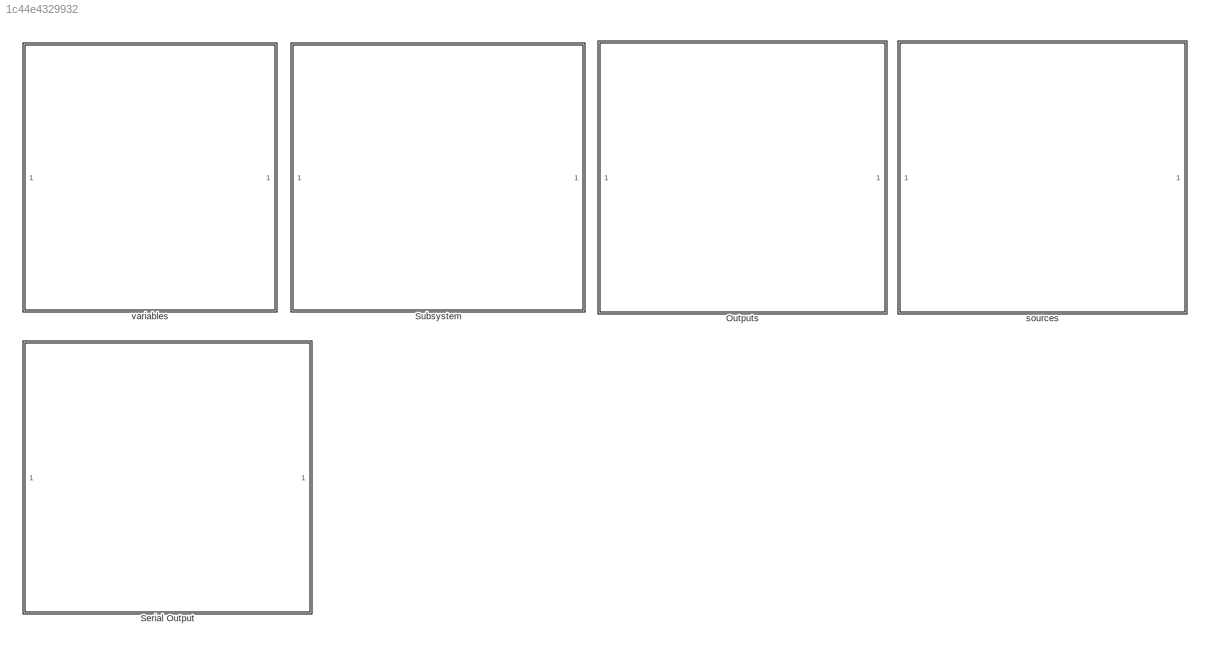
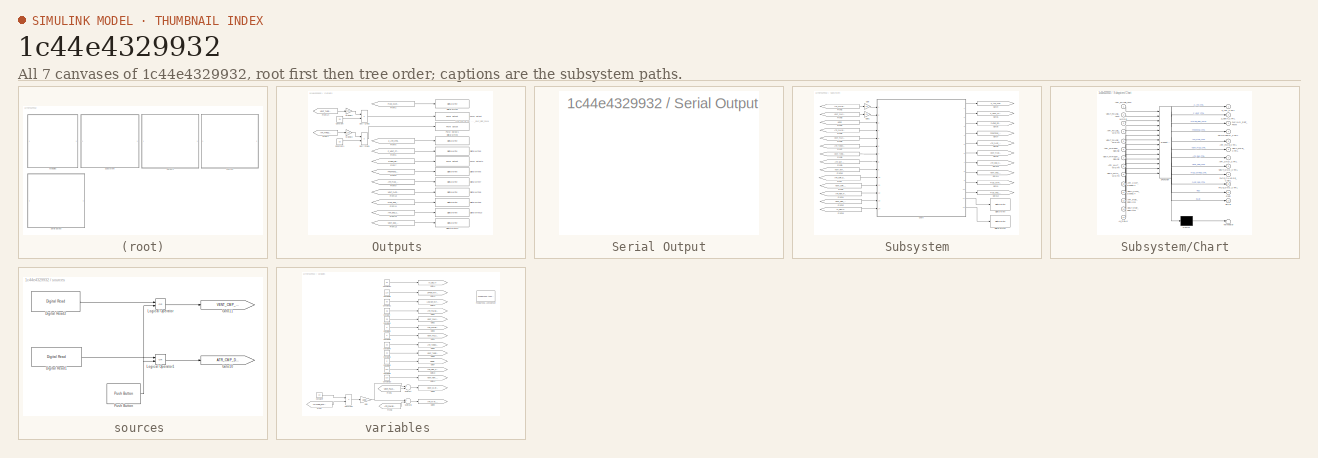
[diagram: thumbnail index - all 7 canvases of the model, root first then tree order]
MODEL slx_1c44e4329932
KIND model
CONFIG AbsTol = auto
CONFIG EnableMultiTasking = on
CONFIG FixedStep = 1E-3
CONFIG MaxStep = auto
CONFIG MinStep = auto
CONFIG RelTol = 1e-3
CONFIG SampleTimeConstraint = Unconstrained
CONFIG Solver = FixedStepAuto
CONFIG SolverName = FixedStepAuto
CONFIG StartTime = 0.0
CONFIG StopTime = 10.0
BLOCK [SubSystem] Outputs 
  Ports = []
  RequestExecContextInheritance = off
  Variant = off
BLOCK [Constant] Outputs /Constant
  Value = 3.3
BLOCK [Constant] Outputs /Constant1
  Value = 3.3
BLOCK [Reference] Outputs /Digital Write10  REF=frdmk64flib/Digital Write
  Ports = [1]
  SourceBlock = frdmk64flib/Digital Write
  SourceProductBaseCode = EC_FRDM_K64F
  SourceProductName = Simulink Coder Support Package for NXP FRDM-K64F Board
  SourceType = freedomk64f.DigitalWrite
BLOCK [Reference] Outputs /Digital Write11  REF=frdmk64flib/Digital Write
  Ports = [1]
  SourceBlock = frdmk64flib/Digital Write
  SourceProductBaseCode = EC_FRDM_K64F
  SourceProductName = Simulink Coder Support Package for NXP FRDM-K64F Board
  SourceType = freedomk64f.DigitalWrite
BLOCK [Reference] Outputs /Digital Write2  REF=frdmk64flib/Digital Write
  Ports = [1]
  SourceBlock = frdmk64flib/Digital Write
  SourceProductBaseCode = EC_FRDM_K64F
  SourceProductName = Simulink Coder Support Package for NXP FRDM-K64F Board
  SourceType = freedomk64f.DigitalWrite
BLOCK [Reference] Outputs /Digital Write3  REF=frdmk64flib/Digital Write
  Ports = [1]
  SourceBlock = frdmk64flib/Digital Write
  SourceProductBaseCode = EC_FRDM_K64F
  SourceProductName = Simulink Coder Support Package for NXP FRDM-K64F Board
  SourceType = freedomk64f.DigitalWrite
BLOCK [Reference] Outputs /Digital Write5  REF=frdmk64flib/Digital Write
  Ports = [1]
  SourceBlock = frdmk64flib/Digital Write
  SourceProductBaseCode = EC_FRDM_K64F
  SourceProductName = Simulink Coder Support Package for NXP FRDM-K64F Board
  SourceType = freedomk64f.DigitalWrite
BLOCK [Reference] Outputs /Digital Write6  REF=frdmk64flib/Digital Write
  Ports = [1]
  SourceBlock = frdmk64flib/Digital Write
  SourceProductBaseCode = EC_FRDM_K64F
  SourceProductName = Simulink Coder Support Package for NXP FRDM-K64F Board
  SourceType = freedomk64f.DigitalWrite
BLOCK [Reference] Outputs /Digital Write7  REF=frdmk64flib/Digital Write
  Ports = [1]
  SourceBlock = frdmk64flib/Digital Write
  SourceProductBaseCode = EC_FRDM_K64F
  SourceProductName = Simulink Coder Support Package for NXP FRDM-K64F Board
  SourceType = freedomk64f.DigitalWrite
BLOCK [Reference] Outputs /Digital Write8  REF=frdmk64flib/Digital Write
  Ports = [1]
  SourceBlock = frdmk64flib/Digital Write
  SourceProductBaseCode = EC_FRDM_K64F
  SourceProductName = Simulink Coder Support Package for NXP FRDM-K64F Board
  SourceType = freedomk64f.DigitalWrite
BLOCK [Reference] Outputs /Digital Write9  REF=frdmk64flib/Digital Write
  Ports = [1]
  SourceBlock = frdmk64flib/Digital Write
  SourceProductBaseCode = EC_FRDM_K64F
  SourceProductName = Simulink Coder Support Package for NXP FRDM-K64F Board
  SourceType = freedomk64f.DigitalWrite
BLOCK [Product] Outputs /Duty Cycle1
  InputSameDT = off
  Inputs = */
  OutDataTypeStr = Inherit: Inherit via internal rule
  Ports = [2, 1]
  RndMeth = Floor
  SaturateOnIntegerOverflow = off
BLOCK [Product] Outputs /Duty Cycle2
  InputSameDT = off
  Inputs = */
  OutDataTypeStr = Inherit: Inherit via internal rule
  Ports = [2, 1]
  RndMeth = Floor
  SaturateOnIntegerOverflow = off
BLOCK [From] Outputs /From1
  GotoTag = ATR_THRESH_SENSE
  TagVisibility = global
BLOCK [From] Outputs /From10
  GotoTag = VENT_PACE_CTRL
  TagVisibility = global
BLOCK [From] Outputs /From11
  GotoTag = PACE_GND_CTRL
  TagVisibility = global
BLOCK [From] Outputs /From12
  GotoTag = ATR_GND_CTRL
  TagVisibility = global
BLOCK [From] Outputs /From13
  GotoTag = VENT_GND_CTRL
  TagVisibility = global
BLOCK [From] Outputs /From14
  GotoTag = VENT_THRESH_SENSE
  TagVisibility = global
BLOCK [From] Outputs /From2
  GotoTag = PACE_CHARGE_CTRL
  TagVisibility = global
BLOCK [From] Outputs /From5
  GotoTag = Z_ATR_CTRL
  TagVisibility = global
BLOCK [From] Outputs /From6
  GotoTag = Z_VENT_CTRL
  TagVisibility = global
BLOCK [From] Outputs /From7
  GotoTag = PACING_REF_PWM
  TagVisibility = global
BLOCK [From] Outputs /From8
  GotoTag = FRONTEND_CTRL
  TagVisibility = global
BLOCK [From] Outputs /From9
  GotoTag = ATR_PACE_CTRL
  TagVisibility = global
BLOCK [Gain] Outputs /Multiply1
  Gain = 100
  OutDataTypeStr = Inherit: Inherit via internal rule
  ParamDataTypeStr = Inherit: Inherit via internal rule
  SaturateOnIntegerOverflow = off
BLOCK [Gain] Outputs /Multiply2
  Gain = 100
  OutDataTypeStr = Inherit: Inherit via internal rule
  ParamDataTypeStr = Inherit: Inherit via internal rule
  SaturateOnIntegerOverflow = off
BLOCK [Reference] Outputs /PWM Output  REF=frdmk64flib/PWM Output
  Ports = [1]
  SourceBlock = frdmk64flib/PWM Output
  SourceProductBaseCode = EC_FRDM_K64F
  SourceProductName = Simulink Coder Support Package for NXP FRDM-K64F Board
  SourceType = freedomk64f.PWMOutput
BLOCK [Reference] Outputs /PWM Output1  REF=frdmk64flib/PWM Output
  Ports = [1]
  SourceBlock = frdmk64flib/PWM Output
  SourceProductBaseCode = EC_FRDM_K64F
  SourceProductName = Simulink Coder Support Package for NXP FRDM-K64F Board
  SourceType = freedomk64f.PWMOutput
BLOCK [Reference] Outputs /PWM Output2  REF=frdmk64flib/PWM Output
  Ports = [1]
  SourceBlock = frdmk64flib/PWM Output
  SourceProductBaseCode = EC_FRDM_K64F
  SourceProductName = Simulink Coder Support Package for NXP FRDM-K64F Board
  SourceType = freedomk64f.PWMOutput
BLOCK [SubSystem] Serial Output
  Ports = []
  RequestExecContextInheritance = off
  Variant = off
BLOCK [SubSystem] Subsystem
  Ports = []
  RequestExecContextInheritance = off
  Variant = off
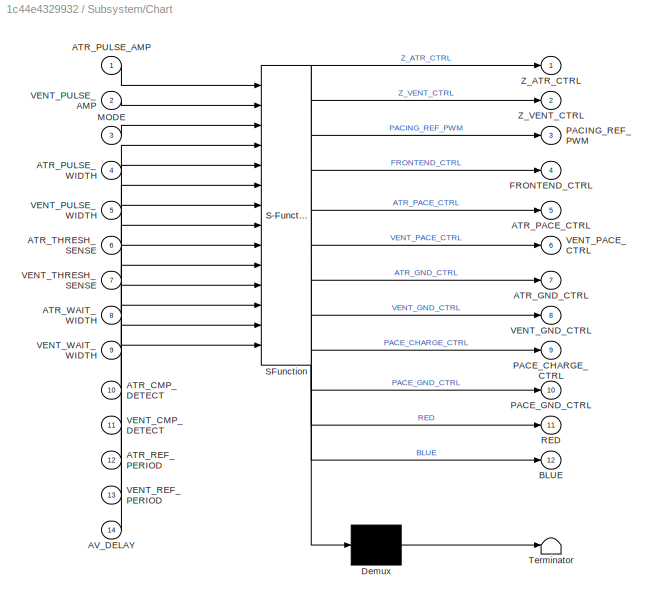
BLOCK [SubSystem] Subsystem/Chart
  ErrorFcn = Stateflow.Translate.translate
  PermitHierarchicalResolution = ExplicitOnly
  Ports = [14, 12]
  RequestExecContextInheritance = off
  SFBlockType = Chart
  TreatAsAtomicUnit = on
  Variant = off
BLOCK [Demux] Subsystem/Chart/ Demux 
  Outputs = 1
  Ports = [1, 1]
BLOCK [S-Function] Subsystem/Chart/ SFunction 
  EnableBusSupport = on
  FunctionName = sf_sfun
  PortCounts = [14 13]
  Ports = [14, 13]
  SFcnIsStateOwnerBlock = off
  SFunctionDeploymentMode = off
  Tag = Stateflow S-Function Assignment1 3
BLOCK [Terminator] Subsystem/Chart/ Terminator 
BLOCK [Inport] Subsystem/Chart/ATR_CMP_DETECT
  IconDisplay = Port number
  Port = 10
BLOCK [Outport] Subsystem/Chart/ATR_GND_CTRL
  IconDisplay = Port number
  Port = 7
BLOCK [Outport] Subsystem/Chart/ATR_PACE_CTRL
  IconDisplay = Port number
  Port = 5
BLOCK [Inport] Subsystem/Chart/ATR_PULSE_AMP
  IconDisplay = Port number
BLOCK [Inport] Subsystem/Chart/ATR_PULSE_WIDTH
  IconDisplay = Port number
  Port = 4
BLOCK [Inport] Subsystem/Chart/ATR_REF_PERIOD
  IconDisplay = Port number
  Port = 12
BLOCK [Inport] Subsystem/Chart/ATR_THRESH_SENSE
  IconDisplay = Port number
  Port = 6
BLOCK [Inport] Subsystem/Chart/ATR_WAIT_WIDTH
  IconDisplay = Port number
  Port = 8
BLOCK [Inport] Subsystem/Chart/AV_DELAY
  IconDisplay = Port number
  Port = 14
BLOCK [Outport] Subsystem/Chart/BLUE
  IconDisplay = Port number
  Port = 12
BLOCK [Outport] Subsystem/Chart/FRONTEND_CTRL
  IconDisplay = Port number
  Port = 4
BLOCK [Inport] Subsystem/Chart/MODE
  IconDisplay = Port number
  Port = 3
BLOCK [Outport] Subsystem/Chart/PACE_CHARGE_CTRL
  IconDisplay = Port number
  Port = 9
BLOCK [Outport] Subsystem/Chart/PACE_GND_CTRL
  IconDisplay = Port number
  Port = 10
BLOCK [Outport] Subsystem/Chart/PACING_REF_PWM
  IconDisplay = Port number
  Port = 3
BLOCK [Outport] Subsystem/Chart/RED
  IconDisplay = Port number
  Port = 11
BLOCK [Inport] Subsystem/Chart/VENT_CMP_DETECT
  IconDisplay = Port number
  Port = 11
BLOCK [Outport] Subsystem/Chart/VENT_GND_CTRL
  IconDisplay = Port number
  Port = 8
BLOCK [Outport] Subsystem/Chart/VENT_PACE_CTRL
  IconDisplay = Port number
  Port = 6
BLOCK [Inport] Subsystem/Chart/VENT_PULSE_AMP
  IconDisplay = Port number
  Port = 2
BLOCK [Inport] Subsystem/Chart/VENT_PULSE_WIDTH
  IconDisplay = Port number
  Port = 5
BLOCK [Inport] Subsystem/Chart/VENT_REF_PERIOD
  IconDisplay = Port number
  Port = 13
BLOCK [Inport] Subsystem/Chart/VENT_THRESH_SENSE
  IconDisplay = Port number
  Port = 7
BLOCK [Inport] Subsystem/Chart/VENT_WAIT_WIDTH
  IconDisplay = Port number
  Port = 9
BLOCK [Outport] Subsystem/Chart/Z_ATR_CTRL
  IconDisplay = Port number
BLOCK [Outport] Subsystem/Chart/Z_VENT_CTRL
  IconDisplay = Port number
  Port = 2
BLOCK [Reference] Subsystem/Digital Write  REF=frdmk64flib/Digital Write
  Ports = [1]
  SourceBlock = frdmk64flib/Digital Write
  SourceProductBaseCode = EC_FRDM_K64F
  SourceProductName = Simulink Coder Support Package for NXP FRDM-K64F Board
  SourceType = freedomk64f.DigitalWrite
BLOCK [Reference] Subsystem/Digital Write1  REF=frdmk64flib/Digital Write
  Ports = [1]
  SourceBlock = frdmk64flib/Digital Write
  SourceProductBaseCode = EC_FRDM_K64F
  SourceProductName = Simulink Coder Support Package for NXP FRDM-K64F Board
  SourceType = freedomk64f.DigitalWrite
BLOCK [From] Subsystem/From
  GotoTag = ATR_CMP_DETECT
  TagVisibility = global
BLOCK [From] Subsystem/From1
  GotoTag = VENT_CMP_DETECT
  TagVisibility = global
BLOCK [From] Subsystem/From10
  GotoTag = VENT_WAIT_WIDTH
  TagVisibility = global
BLOCK [From] Subsystem/From11
  GotoTag = ATR_REF_PERIOD
  TagVisibility = global
BLOCK [From] Subsystem/From12
  GotoTag = VENT_REF_PERIOD
  TagVisibility = global
BLOCK [From] Subsystem/From13
  GotoTag = AV_DELAY
  TagVisibility = global
BLOCK [From] Subsystem/From2
  GotoTag = ATR_PULSE_AMP
  TagVisibility = global
BLOCK [From] Subsystem/From3
  GotoTag = VENT_PULSE_AMP
  TagVisibility = global
BLOCK [From] Subsystem/From4
  GotoTag = MODE
  TagVisibility = global
BLOCK [From] Subsystem/From5
  GotoTag = ATR_PULSE_WIDTH
  TagVisibility = global
BLOCK [From] Subsystem/From6
  GotoTag = VENT_PULSE_WIDTH
  TagVisibility = global
BLOCK [From] Subsystem/From7
  GotoTag = ATR_THRESH_SENSE
  TagVisibility = global
BLOCK [From] Subsystem/From8
  GotoTag = VENT_THRESH_SENSE
  TagVisibility = global
BLOCK [From] Subsystem/From9
  GotoTag = ATR_WAIT_WIDTH
  TagVisibility = global
BLOCK [Gain] Subsystem/Gain
  Gain = 20
  OutDataTypeStr = Inherit: Inherit via internal rule
  ParamDataTypeStr = Inherit: Inherit via internal rule
  SaturateOnIntegerOverflow = off
BLOCK [Gain] Subsystem/Gain1
  Gain = 20
  OutDataTypeStr = Inherit: Inherit via internal rule
  ParamDataTypeStr = Inherit: Inherit via internal rule
  SaturateOnIntegerOverflow = off
BLOCK [Goto] Subsystem/Goto1
  GotoTag = PACE_CHARGE_CTRL
  TagVisibility = global
BLOCK [Goto] Subsystem/Goto10
  GotoTag = ATR_GND_CTRL
  TagVisibility = global
BLOCK [Goto] Subsystem/Goto11
  GotoTag = VENT_GND_CTRL
  TagVisibility = global
BLOCK [Goto] Subsystem/Goto12
  GotoTag = PACE_GND_CTRL
  TagVisibility = global
BLOCK [Goto] Subsystem/Goto4
  GotoTag = Z_ATR_CTRL
  TagVisibility = global
BLOCK [Goto] Subsystem/Goto5
  GotoTag = Z_VENT_CTRL
  TagVisibility = global
BLOCK [Goto] Subsystem/Goto6
  GotoTag = PACING_REF_PWM
  TagVisibility = global
BLOCK [Goto] Subsystem/Goto7
  GotoTag = FRONTEND_CTRL
  TagVisibility = global
BLOCK [Goto] Subsystem/Goto8
  GotoTag = ATR_PACE_CTRL
  TagVisibility = global
BLOCK [Goto] Subsystem/Goto9
  GotoTag = VENT_PACE_CTRL
  TagVisibility = global
BLOCK [SubSystem] sources 
  Ports = []
  RequestExecContextInheritance = off
  Variant = off
BLOCK [Reference] sources /Digital Read1  REF=frdmk64flib/Digital Read
  Ports = [0, 1]
  SourceBlock = frdmk64flib/Digital Read
  SourceProductBaseCode = EC_FRDM_K64F
  SourceProductName = Simulink Coder Support Package for NXP FRDM-K64F Board
  SourceType = freedomk64f.DigitalRead
BLOCK [Reference] sources /Digital Read2  REF=frdmk64flib/Digital Read
  Ports = [0, 1]
  SourceBlock = frdmk64flib/Digital Read
  SourceProductBaseCode = EC_FRDM_K64F
  SourceProductName = Simulink Coder Support Package for NXP FRDM-K64F Board
  SourceType = freedomk64f.DigitalRead
BLOCK [Goto] sources /Goto10
  GotoTag = ATR_CMP_DETECT
  TagVisibility = global
BLOCK [Goto] sources /Goto11
  GotoTag = VENT_CMP_DETECT
  TagVisibility = global
BLOCK [Logic] sources /Logical Operator
  AllPortsSameDT = off
  Operator = OR
  OutDataTypeStr = boolean
  Ports = [2, 1]
BLOCK [Logic] sources /Logical Operator1
  AllPortsSameDT = off
  Operator = OR
  OutDataTypeStr = boolean
  Ports = [2, 1]
BLOCK [Reference] sources /Push Button  REF=frdmk64flib/Push Button
  Ports = [0, 1]
  SourceBlock = frdmk64flib/Push Button
  SourceProductBaseCode = EC_FRDM_K64F
  SourceProductName = Simulink Coder Support Package for NXP FRDM-K64F Board
  SourceType = freedomk64f.PushButton
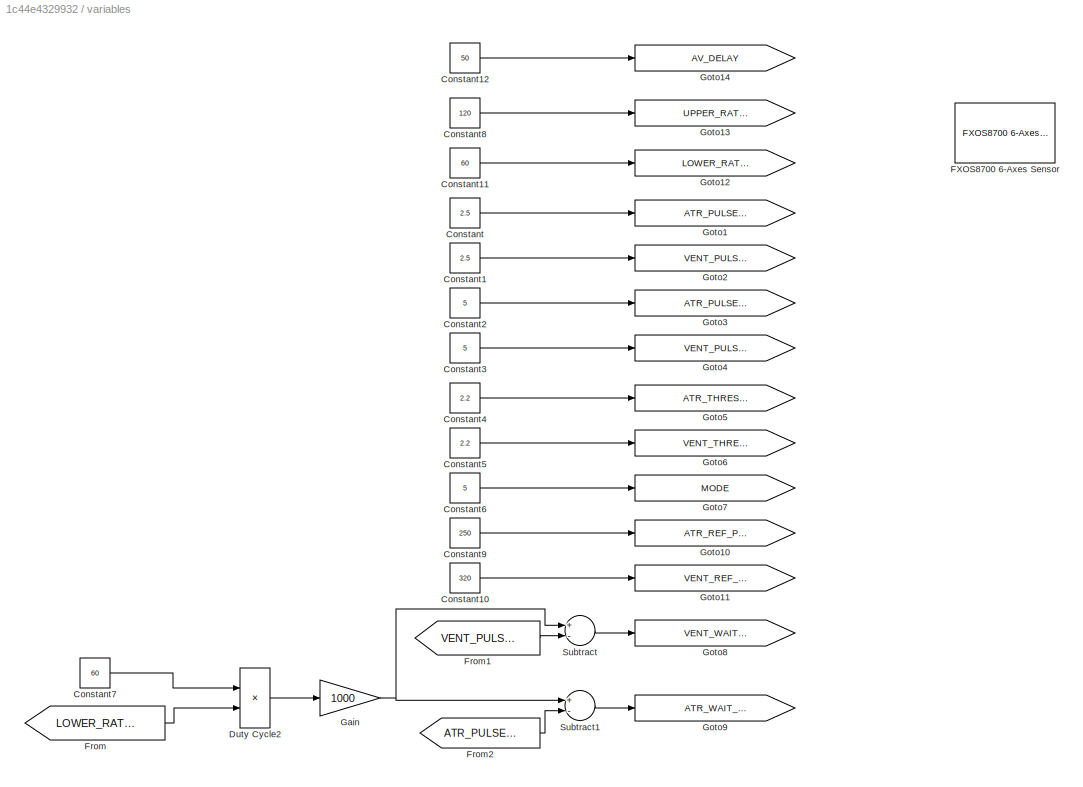
BLOCK [SubSystem] variables 
  Ports = []
  RequestExecContextInheritance = off
  Variant = off
BLOCK [Constant] variables /Constant
  Value = 2.5
BLOCK [Constant] variables /Constant1
  Value = 2.5
BLOCK [Constant] variables /Constant10
  Value = 320
BLOCK [Constant] variables /Constant11
  Value = 60
BLOCK [Constant] variables /Constant12
  Value = 50
BLOCK [Constant] variables /Constant2
  Value = 5
BLOCK [Constant] variables /Constant3
  Value = 5
BLOCK [Constant] variables /Constant4
  Value = 2.2
BLOCK [Constant] variables /Constant5
  Value = 2.2
BLOCK [Constant] variables /Constant6
  OutDataTypeStr = int8
  Value = 5
BLOCK [Constant] variables /Constant7
  Value = 60
BLOCK [Constant] variables /Constant8
  Value = 120
BLOCK [Constant] variables /Constant9
  Value = 250
BLOCK [Product] variables /Duty Cycle2
  InputSameDT = off
  Inputs = */
  OutDataTypeStr = Inherit: Inherit via internal rule
  Ports = [2, 1]
  RndMeth = Floor
  SaturateOnIntegerOverflow = off
BLOCK [Reference] variables /FXOS8700 6-Axes Sensor  REF=frdmk64flib/FXOS8700 6-Axes Sensor
  Ports = [0, 1]
  SourceBlock = frdmk64flib/FXOS8700 6-Axes Sensor
  SourceProductBaseCode = EC_FRDM_K64F
  SourceProductName = Simulink Coder Support Package for NXP FRDM-K64F Board
  SourceType = freedomk64f.fxos8700
BLOCK [From] variables /From
  GotoTag = LOWER_RATE_LIMIT
  TagVisibility = global
BLOCK [From] variables /From1
  GotoTag = VENT_PULSE_WIDTH
  TagVisibility = global
BLOCK [From] variables /From2
  GotoTag = ATR_PULSE_WIDTH
  TagVisibility = global
BLOCK [Gain] variables /Gain
  Gain = 1000
  OutDataTypeStr = Inherit: Inherit via internal rule
  ParamDataTypeStr = Inherit: Inherit via internal rule
  SaturateOnIntegerOverflow = off
BLOCK [Goto] variables /Goto1
  GotoTag = ATR_PULSE_AMP
  TagVisibility = global
BLOCK [Goto] variables /Goto10
  GotoTag = ATR_REF_PERIOD
  TagVisibility = global
BLOCK [Goto] variables /Goto11
  GotoTag = VENT_REF_PERIOD
  TagVisibility = global
BLOCK [Goto] variables /Goto12
  GotoTag = LOWER_RATE_LIMIT
  TagVisibility = global
BLOCK [Goto] variables /Goto13
  GotoTag = UPPER_RATE_LIMIT
  TagVisibility = global
BLOCK [Goto] variables /Goto14
  GotoTag = AV_DELAY
  TagVisibility = global
BLOCK [Goto] variables /Goto2
  GotoTag = VENT_PULSE_AMP
  TagVisibility = global
BLOCK [Goto] variables /Goto3
  GotoTag = ATR_PULSE_WIDTH
  TagVisibility = global
BLOCK [Goto] variables /Goto4
  GotoTag = VENT_PULSE_WIDTH
  TagVisibility = global
BLOCK [Goto] variables /Goto5
  GotoTag = ATR_THRESH_SENSE
  TagVisibility = global
BLOCK [Goto] variables /Goto6
  GotoTag = VENT_THRESH_SENSE
  TagVisibility = global
BLOCK [Goto] variables /Goto7
  GotoTag = MODE
  TagVisibility = global
BLOCK [Goto] variables /Goto8
  GotoTag = VENT_WAIT_WIDTH
  TagVisibility = global
BLOCK [Goto] variables /Goto9
  GotoTag = ATR_WAIT_WIDTH
  TagVisibility = global
BLOCK [Sum] variables /Subtract
  InputSameDT = off
  Inputs = +-
  OutDataTypeStr = Inherit: Inherit via internal rule
  Ports = [2, 1]
  SaturateOnIntegerOverflow = off
BLOCK [Sum] variables /Subtract1
  InputSameDT = off
  Inputs = +-
  OutDataTypeStr = Inherit: Inherit via internal rule
  Ports = [2, 1]
  SaturateOnIntegerOverflow = off
ANNOTATION Outputs : %D3 and D6 set ..._CMP_REF_PWM
LINE Outputs /Constant1:1 -> Outputs /Duty Cycle1:2
LINE Outputs /Constant:1 -> Outputs /Duty Cycle2:2
LINE Outputs /Duty Cycle1:1 -> Outputs /PWM Output1:1
LINE Outputs /Duty Cycle2:1 -> Outputs /PWM Output:1
LINE Outputs /From10:1 -> Outputs /Digital Write8:1
LINE Outputs /From11:1 -> Outputs /Digital Write9:1
LINE Outputs /From12:1 -> Outputs /Digital Write10:1
LINE Outputs /From13:1 -> Outputs /Digital Write11:1
LINE Outputs /From14:1 -> Outputs /Multiply1:1
LINE Outputs /From1:1 -> Outputs /Multiply2:1
LINE Outputs /From2:1 -> Outputs /Digital Write2:1
LINE Outputs /From5:1 -> Outputs /Digital Write3:1
LINE Outputs /From6:1 -> Outputs /Digital Write6:1
LINE Outputs /From7:1 -> Outputs /PWM Output2:1
LINE Outputs /From8:1 -> Outputs /Digital Write5:1
LINE Outputs /From9:1 -> Outputs /Digital Write7:1
LINE Outputs /Multiply1:1 -> Outputs /Duty Cycle2:1
LINE Outputs /Multiply2:1 -> Outputs /Duty Cycle1:1
LINE Subsystem/Chart:1 -> Subsystem/Goto4:1
LINE Subsystem/Chart:10 -> Subsystem/Goto12:1
LINE Subsystem/Chart:11 -> Subsystem/Digital Write:1
LINE Subsystem/Chart:12 -> Subsystem/Digital Write1:1
LINE Subsystem/Chart:2 -> Subsystem/Goto5:1
LINE Subsystem/Chart:3 -> Subsystem/Goto6:1
LINE Subsystem/Chart:4 -> Subsystem/Goto7:1
LINE Subsystem/Chart:5 -> Subsystem/Goto8:1
LINE Subsystem/Chart:6 -> Subsystem/Goto9:1
LINE Subsystem/Chart:7 -> Subsystem/Goto10:1
LINE Subsystem/Chart:8 -> Subsystem/Goto11:1
LINE Subsystem/Chart:9 -> Subsystem/Goto1:1
LINE Subsystem/From10:1 -> Subsystem/Chart:9
LINE Subsystem/From11:1 -> Subsystem/Chart:12
LINE Subsystem/From12:1 -> Subsystem/Chart:13
LINE Subsystem/From13:1 -> Subsystem/Chart:14
LINE Subsystem/From1:1 -> Subsystem/Chart:11
LINE Subsystem/From2:1 -> Subsystem/Gain:1
LINE Subsystem/From3:1 -> Subsystem/Gain1:1
LINE Subsystem/From4:1 -> Subsystem/Chart:3
LINE Subsystem/From5:1 -> Subsystem/Chart:4
LINE Subsystem/From6:1 -> Subsystem/Chart:5
LINE Subsystem/From7:1 -> Subsystem/Chart:6
LINE Subsystem/From8:1 -> Subsystem/Chart:7
LINE Subsystem/From9:1 -> Subsystem/Chart:8
LINE Subsystem/From:1 -> Subsystem/Chart:10
LINE Subsystem/Gain1:1 -> Subsystem/Chart:2
LINE Subsystem/Gain:1 -> Subsystem/Chart:1
LINE sources /Digital Read1:1 -> sources /Logical Operator1:1
LINE sources /Digital Read2:1 -> sources /Logical Operator:1
LINE sources /Logical Operator1:1 -> sources /Goto10:1
LINE sources /Logical Operator:1 -> sources /Goto11:1
NET sources /Push Button:1 -> sources /Logical Operator1:2, sources /Logical Operator:2
LINE variables /Constant10:1 -> variables /Goto11:1
LINE variables /Constant11:1 -> variables /Goto12:1
LINE variables /Constant12:1 -> variables /Goto14:1
LINE variables /Constant1:1 -> variables /Goto2:1
LINE variables /Constant2:1 -> variables /Goto3:1
LINE variables /Constant3:1 -> variables /Goto4:1
LINE variables /Constant4:1 -> variables /Goto5:1
LINE variables /Constant5:1 -> variables /Goto6:1
LINE variables /Constant6:1 -> variables /Goto7:1
LINE variables /Constant7:1 -> variables /Duty Cycle2:1
LINE variables /Constant8:1 -> variables /Goto13:1
LINE variables /Constant9:1 -> variables /Goto10:1
LINE variables /Constant:1 -> variables /Goto1:1
LINE variables /Duty Cycle2:1 -> variables /Gain:1
LINE variables /From1:1 -> variables /Subtract:2
LINE variables /From2:1 -> variables /Subtract1:2
LINE variables /From:1 -> variables /Duty Cycle2:2
NET variables /Gain:1 -> variables /Subtract1:1, variables /Subtract:1
LINE variables /Subtract1:1 -> variables /Goto9:1
LINE variables /Subtract:1 -> variables /Goto8:1
note: NET lines group one-source signal fan-out (src -> all destinations, sorted); 1:1 wires keep LINE
CHART Subsystem/Chart states=43 transitions=71
  STATE_LABEL 'AAIR'
  STATE_LABEL 'CHARGEC22_DISCHARGEC21 \n\nduring:\n\t%CHARGE C22\n\tPACING_REF_PWM = ATR_PULSE_AMP\n\tPACE_CHARGE_CTRL = true\n\tATR_PACE_CTRL = false\n\tVENT_PACE_CTRL = false\n\t%DISCHARGE C21\n\tPACE_GND_CTRL = true\n\tVENT_PACE_CTRL = false\n\tVENT_GND_CTRL = false\n\tATR_GND_CTRL = true\n\tRED = false\n\tBLUE = false\n\tZ_ATR_CTRL=false\n\tZ_VENT_CTRL=false\n\tFRONTEND_CTRL=true\n'
  STATE_LABEL 'DISCHARGEC22\n%paces atrium\nduring:\n\t%CHARGE C21\n\tATR_PACE_CTRL = true\n\tPACE_CHARGE_CTRL = false\n\tATR_GND_CTRL = false\n\tPACE_GND_CTRL = true\n\tVENT_PACE_CTRL = false\n\tVENT_GND_CTRL = false\n\tZ_ATR_CTRL=false\n\tZ_VENT_CTRL=false\n\tFRONTEND_CTRL=true\n\tRED = true\n'
  STATE_LABEL 'CHARGEC22_DISCHARGEC21_2 \n\nduring:\n\t%CHARGE C22\n\tPACING_REF_PWM = ATR_PULSE_AMP\n\tPACE_CHARGE_CTRL = true\n\tATR_PACE_CTRL = false\n\tVENT_PACE_CTRL = false\n\t%DISCHARGE C21\n\tPACE_GND_CTRL = true\n\tVENT_PACE_CTRL = false\n\tVENT_GND_CTRL = false\n\tATR_GND_CTRL = true\n\tRED = false\n\tBLUE = false\n\tZ_ATR_CTRL=false\n\tZ_VENT_CTRL=false\n\tFRONTEND_CTRL=true\n'
  STATE_LABEL 'DUMMY\n\nduring:\n\tBLUE = true\n\tRED = false\n'
  STATE_LABEL '[MODE == 8]'
  STATE_LABEL 'after(ATR_WAIT_WIDTH - ATR_REF_PERIOD, msec)'
  STATE_LABEL 'after(ATR_REF_PERIOD, msec)'
  STATE_LABEL 'after(ATR_PULSE_WIDTH, msec)'
  STATE_LABEL 'after(ATR_REF_PERIOD, msec)'
  STATE_LABEL '[ATR_CMP_DETECT == true]'
  STATE_LABEL '[ATR_CMP_DETECT == true]'
  STATE_LABEL 'CHARGEC22_DISCHARGEC21 \n\nduring:\n\t%CHARGE C22\n\tPACING_REF_PWM = ATR_PULSE_AMP\n\tPACE_CHARGE_CTRL = true\n\tATR_PACE_CTRL = false\n\tVENT_PACE_CTRL = false\n\t%DISCHARGE C21\n\tPACE_GND_CTRL = true\n\tVENT_PACE_CTRL = false\n\tVENT_GND_CTRL = false\n\tATR_GND_CTRL = true\n\tRED = false\n\tBLUE = false\n\tZ_ATR_CTRL=false\n\tZ_VENT_CTRL=false\n\tFRONTEND_CTRL=true\n'
  STATE_LABEL 'DISCHARGEC22\n%paces atrium\nduring:\n\t%CHARGE C21\n\tATR_PACE_CTRL = true\n\tPACE_CHARGE_CTRL = false\n\tATR_GND_CTRL = false\n\tPACE_GND_CTRL = true\n\tVENT_PACE_CTRL = false\n\tVENT_GND_CTRL = false\n\tZ_ATR_CTRL=false\n\tZ_VENT_CTRL=false\n\tFRONTEND_CTRL=true\n\tRED = true\n'
  STATE_LABEL 'CHARGEC22_DISCHARGEC21_2 \n\nduring:\n\t%CHARGE C22\n\tPACING_REF_PWM = ATR_PULSE_AMP\n\tPACE_CHARGE_CTRL = true\n\tATR_PACE_CTRL = false\n\tVENT_PACE_CTRL = false\n\t%DISCHARGE C21\n\tPACE_GND_CTRL = true\n\tVENT_PACE_CTRL = false\n\tVENT_GND_CTRL = false\n\tATR_GND_CTRL = true\n\tRED = false\n\tBLUE = false\n\tZ_ATR_CTRL=false\n\tZ_VENT_CTRL=false\n\tFRONTEND_CTRL=true\n'
  STATE_LABEL 'DUMMY\n\nduring:\n\tBLUE = true\n\tRED = false\n'
  STATE_LABEL 'AOOR'
  STATE_LABEL 'CHARGEC22_DISCHARGEC21 \n\nduring:\n  %CHARGE C22\n  PACING_REF_PWM = ATR_PULSE_AMP\n  PACE_CHARGE_CTRL = true\n  ATR_PACE_CTRL = false\n  VENT_PACE_CTRL = false\n  %DISCHARGE C21\n  PACE_GND_CTRL = true\n  VENT_PACE_CTRL = false\n  VENT_GND_CTRL = false\n  ATR_GND_CTRL = true\n  Z_ATR_CTRL=false\n  Z_VENT_CTRL=false\n  FRONTEND_CTRL=true\n  RED = false\n'
  STATE_LABEL 'DISCHARGEC22\n%paces atrium\n\nduring:\n\t%CHARGE C21\n\tATR_PACE_CTRL = true\n\tPACE_CHARGE_CTRL = false\n\tATR_GND_CTRL = false\n\tPACE_GND_CTRL = true\n\tVENT_PACE_CTRL = false\n\tVENT_GND_CTRL = false\n\tZ_ATR_CTRL=false\n\tZ_VENT_CTRL=false\n\tFRONTEND_CTRL=true\n\tRED = true'  <repeated x4 — deduplicated; at blocks: Chart>
  STATE_LABEL 'after(ATR_WAIT_WIDTH, msec)'
  STATE_LABEL 'after(ATR_PULSE_WIDTH, msec)'
  STATE_LABEL '[MODE == 6]'
  STATE_LABEL 'CHARGEC22_DISCHARGEC21 \n\nduring:\n  %CHARGE C22\n  PACING_REF_PWM = ATR_PULSE_AMP\n  PACE_CHARGE_CTRL = true\n  ATR_PACE_CTRL = false\n  VENT_PACE_CTRL = false\n  %DISCHARGE C21\n  PACE_GND_CTRL = true\n  VENT_PACE_CTRL = false\n  VENT_GND_CTRL = false\n  ATR_GND_CTRL = true\n  Z_ATR_CTRL=false\n  Z_VENT_CTRL=false\n  FRONTEND_CTRL=true\n  RED = false\n'
  STATE_LABEL 'DOOR'
  STATE_LABEL 'CHARGEC22_DISCHARGEC21 \n\nduring:\n  %CHARGE C22\n  PACING_REF_PWM = ATR_PULSE_AMP\n  PACE_CHARGE_CTRL = true\n  ATR_PACE_CTRL = false\n  VENT_PACE_CTRL = false\n  %DISCHARGE C21\n  PACE_GND_CTRL = true\n  VENT_GND_CTRL = true\n  ATR_GND_CTRL = false\n  Z_ATR_CTRL=false\n  Z_VENT_CTRL=false\n  FRONTEND_CTRL=true\n  BLUE = false\n'
  STATE_LABEL 'CHARGEC22_DISCHARGEC22 \n\nduring:\n\t%CHARGE C22\n\tPACING_REF_PWM = VENT_PULSE_AMP\n\tPACE_CHARGE_CTRL= true\n\tATR_PACE_CTRL = false\n\tVENT_PACE_CTRL = false\n\t%DISCHARGE C21\n\tPACE_GND_CTRL = true\n\tVENT_GND_CTRL = false\n\tATR_GND_CTRL = true\n\tZ_ATR_CTRL=false\n\tZ_VENT_CTRL=false\n\tFRONTEND_CTRL=true\n\tRED = false'
  STATE_LABEL 'DISCHARGEC21\n%pacing through ventricle\nduring:\n\t%CHARGING C21 & DISCHARGING C22\n\tVENT_PACE_CTRL = true\n\tPACE_CHARGE_CTRL = false\n\tVENT_GND_CTRL = false\n\tPACE_GND_CTRL = true\n\tATR_PACE_CTRL = false\n\tATR_GND_CTRL = false\n\tZ_ATR_CTRL=false\n\tZ_VENT_CTRL=false\n\tFRONTEND_CTRL=true\n\tBLUE = true'
  STATE_LABEL '[MODE == 10]'
  STATE_LABEL 'after(VENT_WAIT_WIDTH - AV_DELAY, msec)'
  STATE_LABEL 'after(ATR_PULSE_WIDTH, msec)'
  STATE_LABEL 'after(VENT_PULSE_WIDTH, msec)'
  STATE_LABEL 'after(AV_DELAY - ATR_PULSE_WIDTH, msec)'
  STATE_LABEL 'CHARGEC22_DISCHARGEC21 \n\nduring:\n  %CHARGE C22\n  PACING_REF_PWM = ATR_PULSE_AMP\n  PACE_CHARGE_CTRL = true\n  ATR_PACE_CTRL = false\n  VENT_PACE_CTRL = false\n  %DISCHARGE C21\n  PACE_GND_CTRL = true\n  VENT_GND_CTRL = true\n  ATR_GND_CTRL = false\n  Z_ATR_CTRL=false\n  Z_VENT_CTRL=false\n  FRONTEND_CTRL=true\n  BLUE = false\n'
  STATE_LABEL 'CHARGEC22_DISCHARGEC22 \n\nduring:\n\t%CHARGE C22\n\tPACING_REF_PWM = VENT_PULSE_AMP\n\tPACE_CHARGE_CTRL= true\n\tATR_PACE_CTRL = false\n\tVENT_PACE_CTRL = false\n\t%DISCHARGE C21\n\tPACE_GND_CTRL = true\n\tVENT_GND_CTRL = false\n\tATR_GND_CTRL = true\n\tZ_ATR_CTRL=false\n\tZ_VENT_CTRL=false\n\tFRONTEND_CTRL=true\n\tRED = false'
  STATE_LABEL 'DISCHARGEC21\n%pacing through ventricle\nduring:\n\t%CHARGING C21 & DISCHARGING C22\n\tVENT_PACE_CTRL = true\n\tPACE_CHARGE_CTRL = false\n\tVENT_GND_CTRL = false\n\tPACE_GND_CTRL = true\n\tATR_PACE_CTRL = false\n\tATR_GND_CTRL = false\n\tZ_ATR_CTRL=false\n\tZ_VENT_CTRL=false\n\tFRONTEND_CTRL=true\n\tBLUE = true'
  STATE_LABEL 'VVIR'
  STATE_LABEL 'CHARGEC22_DISCHARGEC21 \n\nduring:\n\t%CHARGE C22\n\tPACING_REF_PWM = VENT_PULSE_AMP\n\tPACE_CHARGE_CTRL = true\n\tVENT_PACE_CTRL = false\n\tATR_PACE_CTRL = false\n\t%DISCHARGE C21\n\tPACE_GND_CTRL = true\n\tATR_PACE_CTRL = false\n\tATR_GND_CTRL = false\n\tVENT_GND_CTRL = true\n\tRED = false\n\tBLUE = false\n\tZ_ATR_CTRL=false\n\tZ_VENT_CTRL=false\n\tFRONTEND_CTRL=true\n'
